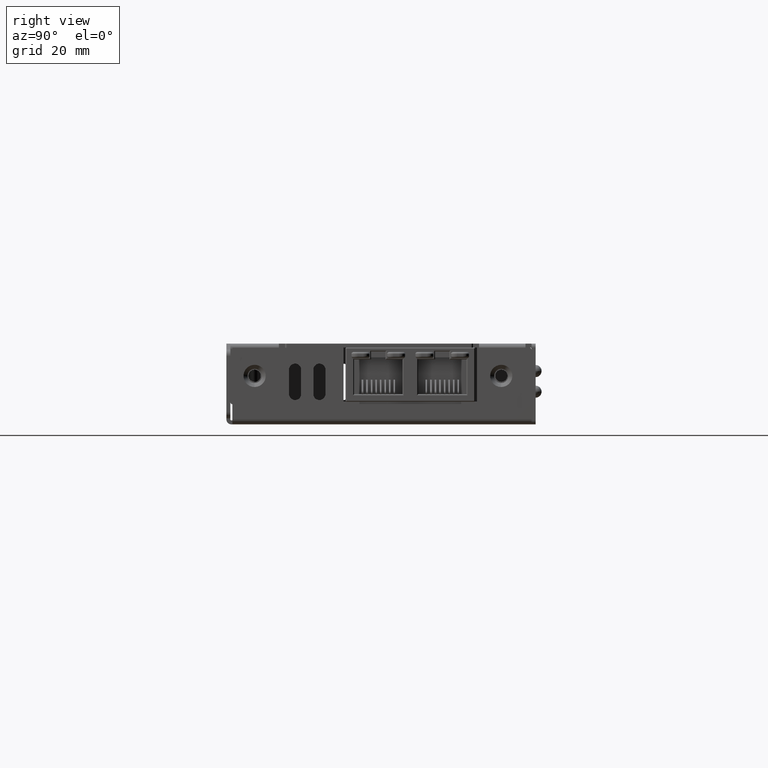
[diagram: clean part render]
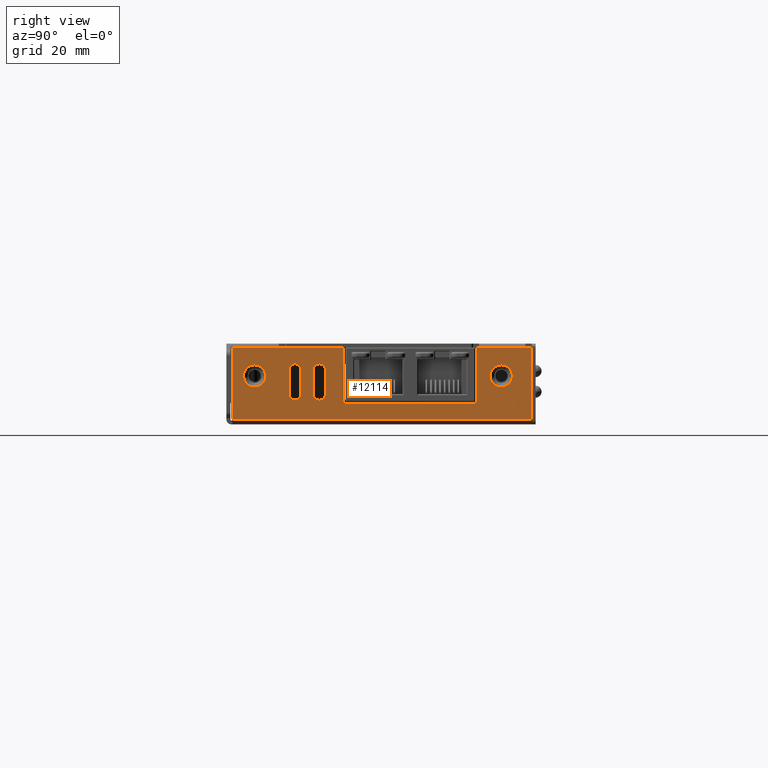
[diagram: same view with one face highlighted and labeled with its STEP entity id]
A machine part, right view. The second image highlights one B-rep face of the part: STEP entity #12114.
In plain terms, the highlighted planar face has unit normal (-1, 0, 0).
Its self-contained STEP definition (entity closure, byte-faithful):
#10593 = VERTEX_POINT ( 'NONE', #23506 ) ;
#10611 = VERTEX_POINT ( 'NONE', #23531 ) ;
#10651 = VERTEX_POINT ( 'NONE', #23627 ) ;
#10658 = EDGE_CURVE ( 'NONE', #10651, #10593, #23621, .T. ) ;
#10690 = EDGE_CURVE ( 'NONE', #10694, #10611, #23672, .T. ) ;
#10694 = VERTEX_POINT ( 'NONE', #23662 ) ;
#11846 = VERTEX_POINT ( 'NONE', #25665 ) ;
#11870 = EDGE_CURVE ( 'NONE', #11897, #11883, #25696, .T. ) ;
#11871 = VERTEX_POINT ( 'NONE', #25705 ) ;
#11883 = VERTEX_POINT ( 'NONE', #25733 ) ;
#11885 = EDGE_CURVE ( 'NONE', #11846, #11883, #25731, .T. ) ;
#11897 = VERTEX_POINT ( 'NONE', #25734 ) ;
#11919 = VERTEX_POINT ( 'NONE', #25715 ) ;
#11925 = EDGE_CURVE ( 'NONE', #11871, #11919, #25747, .T. ) ;
#11936 = EDGE_CURVE ( 'NONE', #11871, #11897, #25789, .T. ) ;
#11942 = EDGE_CURVE ( 'NONE', #11996, #11955, #25784, .T. ) ;
#11949 = EDGE_CURVE ( 'NONE', #11955, #11960, #25807, .T. ) ;
#11955 = VERTEX_POINT ( 'NONE', #25841 ) ;
#11957 = EDGE_CURVE ( 'NONE', #11966, #11960, #25834, .T. ) ;
#11959 = VERTEX_POINT ( 'NONE', #25825 ) ;
#11960 = VERTEX_POINT ( 'NONE', #25846 ) ;
#11963 = EDGE_CURVE ( 'NONE', #11968, #11919, #25869, .T. ) ;
#11964 = EDGE_CURVE ( 'NONE', #11846, #11968, #25864, .T. ) ;
#11966 = VERTEX_POINT ( 'NONE', #25819 ) ;
#11968 = VERTEX_POINT ( 'NONE', #25818 ) ;
#11984 = VERTEX_POINT ( 'NONE', #25848 ) ;
#11990 = EDGE_CURVE ( 'NONE', #11984, #11959, #25900, .T. ) ;
#11996 = VERTEX_POINT ( 'NONE', #25881 ) ;
#12006 = EDGE_CURVE ( 'NONE', #11996, #11959, #25923, .T. ) ;
#12010 = EDGE_CURVE ( 'NONE', #12049, #12107, #25917, .T. ) ;
#12015 = EDGE_CURVE ( 'NONE', #12074, #12017, #25955, .T. ) ;
#12017 = VERTEX_POINT ( 'NONE', #25966 ) ;
#12031 = EDGE_CURVE ( 'NONE', #12034, #12032, #25985, .T. ) ;
#12032 = VERTEX_POINT ( 'NONE', #25986 ) ;
#12034 = VERTEX_POINT ( 'NONE', #25943 ) ;
#12039 = EDGE_CURVE ( 'NONE', #11966, #11984, #25976, .T. ) ;
#12049 = VERTEX_POINT ( 'NONE', #26016 ) ;
#12053 = EDGE_CURVE ( 'NONE', #12067, #12049, #25993, .T. ) ;
#12062 = EDGE_CURVE ( 'NONE', #12017, #12067, #26048, .T. ) ;
#12067 = VERTEX_POINT ( 'NONE', #26021 ) ;
#12070 = EDGE_CURVE ( 'NONE', #12032, #12074, #26070, .T. ) ;
#12074 = VERTEX_POINT ( 'NONE', #26020 ) ;
#12080 = EDGE_CURVE ( 'NONE', #10611, #10694, #26062, .T. ) ;
#12084 = VERTEX_POINT ( 'NONE', #26103 ) ;
#12089 = EDGE_CURVE ( 'NONE', #10593, #10651, #26084, .T. ) ;
#12092 = VERTEX_POINT ( 'NONE', #26097 ) ;
#12107 = VERTEX_POINT ( 'NONE', #26122 ) ;
#12110 = VERTEX_POINT ( 'NONE', #26113 ) ;
#12113 = EDGE_CURVE ( 'NONE', #12092, #12107, #26119, .T. ) ;
#12114 = ADVANCED_FACE ( 'NONE', ( #26161, #26107, #26112, #26160, #26156 ), #26105, .F. ) ;
#12115 = ORIENTED_EDGE ( 'NONE', *, *, #10658, .T. ) ;
#12116 = EDGE_LOOP ( 'NONE', ( #12120, #12122 ) ) ;
#12117 = ORIENTED_EDGE ( 'NONE', *, *, #12089, .T. ) ;
#12118 = ORIENTED_EDGE ( 'NONE', *, *, #12132, .F. ) ;
#12119 = ORIENTED_EDGE ( 'NONE', *, *, #12053, .F. ) ;
#12120 = ORIENTED_EDGE ( 'NONE', *, *, #10690, .T. ) ;
#12121 = EDGE_LOOP ( 'NONE', ( #12118, #12169, #12123, #12124, #12172, #12119, #12175, #12171, #12177, #12173, #12174 ) ) ;
#12122 = ORIENTED_EDGE ( 'NONE', *, *, #12080, .T. ) ;
#12123 = ORIENTED_EDGE ( 'NONE', *, *, #12170, .F. ) ;
#12124 = ORIENTED_EDGE ( 'NONE', *, *, #12113, .T. ) ;
#12132 = EDGE_CURVE ( 'NONE', #12110, #12084, #26153, .T. ) ;
#12143 = EDGE_CURVE ( 'NONE', #12084, #12034, #24995, .T. ) ;
#12146 = ORIENTED_EDGE ( 'NONE', *, *, #11936, .T. ) ;
#12148 = ORIENTED_EDGE ( 'NONE', *, *, #11885, .F. ) ;
#12156 = EDGE_LOOP ( 'NONE', ( #12176, #12161, #12158, #12157, #12164, #12160 ) ) ;
#12157 = ORIENTED_EDGE ( 'NONE', *, *, #11942, .T. ) ;
#12158 = ORIENTED_EDGE ( 'NONE', *, *, #12006, .F. ) ;
#12160 = ORIENTED_EDGE ( 'NONE', *, *, #11957, .F. ) ;
#12161 = ORIENTED_EDGE ( 'NONE', *, *, #11990, .T. ) ;
#12162 = ORIENTED_EDGE ( 'NONE', *, *, #11870, .T. ) ;
#12163 = ORIENTED_EDGE ( 'NONE', *, *, #11964, .T. ) ;
#12164 = ORIENTED_EDGE ( 'NONE', *, *, #11949, .T. ) ;
#12165 = EDGE_LOOP ( 'NONE', ( #12163, #12180, #12166, #12146, #12162, #12148 ) ) ;
#12166 = ORIENTED_EDGE ( 'NONE', *, *, #11925, .F. ) ;
#12168 = VERTEX_POINT ( 'NONE', #26189 ) ;
#12169 = ORIENTED_EDGE ( 'NONE', *, *, #12182, .T. ) ;
#12170 = EDGE_CURVE ( 'NONE', #12092, #12168, #26182, .T. ) ;
#12171 = ORIENTED_EDGE ( 'NONE', *, *, #12015, .F. ) ;
#12172 = ORIENTED_EDGE ( 'NONE', *, *, #12010, .F. ) ;
#12173 = ORIENTED_EDGE ( 'NONE', *, *, #12031, .F. ) ;
#12174 = ORIENTED_EDGE ( 'NONE', *, *, #12143, .F. ) ;
#12175 = ORIENTED_EDGE ( 'NONE', *, *, #12062, .F. ) ;
#12176 = ORIENTED_EDGE ( 'NONE', *, *, #12039, .T. ) ;
#12177 = ORIENTED_EDGE ( 'NONE', *, *, #12070, .F. ) ;
#12180 = ORIENTED_EDGE ( 'NONE', *, *, #11963, .T. ) ;
#12181 = EDGE_LOOP ( 'NONE', ( #12115, #12117 ) ) ;
#12182 = EDGE_CURVE ( 'NONE', #12110, #12168, #26170, .T. ) ;
#23506 = CARTESIAN_POINT ( 'NONE',  ( 134.0000000000000000, 67.99999999999998600, 14.74999999999998600 ) ) ;
#23531 = CARTESIAN_POINT ( 'NONE',  ( 134.0000000000000000, 7.000000000000000900, 14.75000000000001200 ) ) ;
#23588 = AXIS2_PLACEMENT_3D ( 'NONE', #23628, #23611, #23610 ) ;
#23610 = DIRECTION ( 'NONE',  ( 0.0000000000000000000, 0.0000000000000000000, 1.000000000000000000 ) ) ;
#23611 = DIRECTION ( 'NONE',  ( -1.000000000000000000, 0.0000000000000000000, 0.0000000000000000000 ) ) ;
#23621 = CIRCLE ( 'NONE', #23588, 2.749999999999976500 ) ;
#23627 = CARTESIAN_POINT ( 'NONE',  ( 134.0000000000000000, 67.99999999999998600, 9.250000000000035500 ) ) ;
#23628 = CARTESIAN_POINT ( 'NONE',  ( 134.0000000000000000, 67.99999999999998600, 12.00000000000001100 ) ) ;
#23659 = DIRECTION ( 'NONE',  ( 0.0000000000000000000, 0.0000000000000000000, 1.000000000000000000 ) ) ;
#23660 = DIRECTION ( 'NONE',  ( -1.000000000000000000, 0.0000000000000000000, 0.0000000000000000000 ) ) ;
#23661 = CARTESIAN_POINT ( 'NONE',  ( 134.0000000000000000, 7.000000000000000900, 12.00000000000001100 ) ) ;
#23662 = CARTESIAN_POINT ( 'NONE',  ( 134.0000000000000000, 7.000000000000000900, 9.250000000000008900 ) ) ;
#23663 = AXIS2_PLACEMENT_3D ( 'NONE', #23661, #23660, #23659 ) ;
#23672 = CIRCLE ( 'NONE', #23663, 2.750000000000002700 ) ;
#24267 = VECTOR ( 'NONE', #24313, 1000.000000000000000 ) ;
#24292 = CARTESIAN_POINT ( 'NONE',  ( 134.0000000000000000, 1.500000000000000000, 0.0000000000000000000 ) ) ;
#24313 = DIRECTION ( 'NONE',  ( 0.0000000000000000000, 0.0000000000000000000, 1.000000000000000000 ) ) ;
#24985 = CARTESIAN_POINT ( 'NONE',  ( 134.0000000000000000, 75.50000000000000000, 19.00000000000001800 ) ) ;
#24990 = DIRECTION ( 'NONE',  ( 0.0000000000000000000, 1.000000000000000000, 0.0000000000000000000 ) ) ;
#24991 = VECTOR ( 'NONE', #24990, 1000.000000000000000 ) ;
#24995 = LINE ( 'NONE', #24985, #24991 ) ;
#25665 = CARTESIAN_POINT ( 'NONE',  ( 134.0000000000000000, 21.50000000000000000, 13.50000000000001200 ) ) ;
#25669 = AXIS2_PLACEMENT_3D ( 'NONE', #25695, #25694, #25693 ) ;
#25693 = DIRECTION ( 'NONE',  ( 0.0000000000000000000, 0.0000000000000000000, 1.000000000000000000 ) ) ;
#25694 = DIRECTION ( 'NONE',  ( -1.000000000000000000, 0.0000000000000000000, 0.0000000000000000000 ) ) ;
#25695 = CARTESIAN_POINT ( 'NONE',  ( 134.0000000000000000, 23.00000000000000000, 7.500000000000007100 ) ) ;
#25696 = CIRCLE ( 'NONE', #25669, 1.499999999999999600 ) ;
#25705 = CARTESIAN_POINT ( 'NONE',  ( 134.0000000000000000, 24.49999999999999600, 7.500000000000007100 ) ) ;
#25715 = CARTESIAN_POINT ( 'NONE',  ( 134.0000000000000000, 24.49999999999999600, 13.50000000000001200 ) ) ;
#25728 = DIRECTION ( 'NONE',  ( 0.0000000000000000000, 0.0000000000000000000, -1.000000000000000000 ) ) ;
#25729 = VECTOR ( 'NONE', #25728, 1000.000000000000000 ) ;
#25730 = CARTESIAN_POINT ( 'NONE',  ( 134.0000000000000000, 21.50000000000000000, 15.00000000000001400 ) ) ;
#25731 = LINE ( 'NONE', #25730, #25729 ) ;
#25733 = CARTESIAN_POINT ( 'NONE',  ( 134.0000000000000000, 21.50000000000000000, 7.500000000000007100 ) ) ;
#25734 = CARTESIAN_POINT ( 'NONE',  ( 134.0000000000000000, 22.99999999999999600, 6.000000000000005300 ) ) ;
#25740 = CARTESIAN_POINT ( 'NONE',  ( 134.0000000000000000, 16.99999999999999600, 7.500000000000007100 ) ) ;
#25743 = DIRECTION ( 'NONE',  ( 0.0000000000000000000, 0.0000000000000000000, 1.000000000000000000 ) ) ;
#25744 = VECTOR ( 'NONE', #25743, 1000.000000000000000 ) ;
#25745 = CARTESIAN_POINT ( 'NONE',  ( 134.0000000000000000, 24.49999999999999600, 15.00000000000001400 ) ) ;
#25747 = LINE ( 'NONE', #25745, #25744 ) ;
#25770 = AXIS2_PLACEMENT_3D ( 'NONE', #25817, #25816, #25815 ) ;
#25775 = DIRECTION ( 'NONE',  ( 0.0000000000000000000, 0.0000000000000000000, 1.000000000000000000 ) ) ;
#25776 = DIRECTION ( 'NONE',  ( -1.000000000000000000, 0.0000000000000000000, 0.0000000000000000000 ) ) ;
#25777 = CARTESIAN_POINT ( 'NONE',  ( 134.0000000000000000, 22.99999999999999600, 7.500000000000007100 ) ) ;
#25784 = CIRCLE ( 'NONE', #25770, 1.499999999999999600 ) ;
#25789 = CIRCLE ( 'NONE', #25790, 1.499999999999999600 ) ;
#25790 = AXIS2_PLACEMENT_3D ( 'NONE', #25777, #25776, #25775 ) ;
#25796 = AXIS2_PLACEMENT_3D ( 'NONE', #25868, #25867, #25866 ) ;
#25799 = DIRECTION ( 'NONE',  ( 0.0000000000000000000, 0.0000000000000000000, 1.000000000000000000 ) ) ;
#25800 = DIRECTION ( 'NONE',  ( -1.000000000000000000, 0.0000000000000000000, 0.0000000000000000000 ) ) ;
#25807 = CIRCLE ( 'NONE', #25814, 1.499999999999999600 ) ;
#25814 = AXIS2_PLACEMENT_3D ( 'NONE', #25740, #25800, #25799 ) ;
#25815 = DIRECTION ( 'NONE',  ( 0.0000000000000000000, 0.0000000000000000000, 1.000000000000000000 ) ) ;
#25816 = DIRECTION ( 'NONE',  ( -1.000000000000000000, 0.0000000000000000000, 0.0000000000000000000 ) ) ;
#25817 = CARTESIAN_POINT ( 'NONE',  ( 134.0000000000000000, 16.99999999999999600, 7.500000000000007100 ) ) ;
#25818 = CARTESIAN_POINT ( 'NONE',  ( 134.0000000000000000, 23.00000000000000000, 15.00000000000001400 ) ) ;
#25819 = CARTESIAN_POINT ( 'NONE',  ( 134.0000000000000000, 15.49999999999999800, 13.50000000000001200 ) ) ;
#25825 = CARTESIAN_POINT ( 'NONE',  ( 134.0000000000000000, 18.50000000000000000, 13.50000000000001200 ) ) ;
#25826 = DIRECTION ( 'NONE',  ( 0.0000000000000000000, 0.0000000000000000000, -1.000000000000000000 ) ) ;
#25827 = VECTOR ( 'NONE', #25826, 1000.000000000000000 ) ;
#25828 = CARTESIAN_POINT ( 'NONE',  ( 134.0000000000000000, 15.49999999999999800, 15.00000000000001400 ) ) ;
#25833 = CARTESIAN_POINT ( 'NONE',  ( 134.0000000000000000, 23.00000000000000000, 13.50000000000001200 ) ) ;
#25834 = LINE ( 'NONE', #25828, #25827 ) ;
#25841 = CARTESIAN_POINT ( 'NONE',  ( 134.0000000000000000, 16.99999999999999600, 6.000000000000005300 ) ) ;
#25846 = CARTESIAN_POINT ( 'NONE',  ( 134.0000000000000000, 15.49999999999999800, 7.500000000000007100 ) ) ;
#25848 = CARTESIAN_POINT ( 'NONE',  ( 134.0000000000000000, 16.99999999999999600, 15.00000000000001400 ) ) ;
#25852 = AXIS2_PLACEMENT_3D ( 'NONE', #25893, #25892, #25891 ) ;
#25862 = DIRECTION ( 'NONE',  ( 0.0000000000000000000, 0.0000000000000000000, 1.000000000000000000 ) ) ;
#25863 = DIRECTION ( 'NONE',  ( -1.000000000000000000, 0.0000000000000000000, 0.0000000000000000000 ) ) ;
#25864 = CIRCLE ( 'NONE', #25872, 1.499999999999999600 ) ;
#25866 = DIRECTION ( 'NONE',  ( 0.0000000000000000000, 0.0000000000000000000, 1.000000000000000000 ) ) ;
#25867 = DIRECTION ( 'NONE',  ( -1.000000000000000000, 0.0000000000000000000, 0.0000000000000000000 ) ) ;
#25868 = CARTESIAN_POINT ( 'NONE',  ( 134.0000000000000000, 22.99999999999999600, 13.50000000000001200 ) ) ;
#25869 = CIRCLE ( 'NONE', #25796, 1.499999999999999600 ) ;
#25872 = AXIS2_PLACEMENT_3D ( 'NONE', #25833, #25863, #25862 ) ;
#25881 = CARTESIAN_POINT ( 'NONE',  ( 134.0000000000000000, 18.50000000000000000, 7.500000000000007100 ) ) ;
#25891 = DIRECTION ( 'NONE',  ( 0.0000000000000000000, 0.0000000000000000000, 1.000000000000000000 ) ) ;
#25892 = DIRECTION ( 'NONE',  ( -1.000000000000000000, 0.0000000000000000000, 0.0000000000000000000 ) ) ;
#25893 = CARTESIAN_POINT ( 'NONE',  ( 134.0000000000000000, 16.99999999999999600, 13.50000000000001200 ) ) ;
#25900 = CIRCLE ( 'NONE', #25852, 1.499999999999999600 ) ;
#25909 = DIRECTION ( 'NONE',  ( 0.0000000000000000000, 1.000000000000000000, 0.0000000000000000000 ) ) ;
#25910 = VECTOR ( 'NONE', #25909, 1000.000000000000000 ) ;
#25911 = CARTESIAN_POINT ( 'NONE',  ( 134.0000000000000000, 75.50000000000000000, 19.00000000000001800 ) ) ;
#25917 = LINE ( 'NONE', #25911, #25910 ) ;
#25920 = DIRECTION ( 'NONE',  ( 0.0000000000000000000, 0.0000000000000000000, 1.000000000000000000 ) ) ;
#25921 = VECTOR ( 'NONE', #25920, 1000.000000000000000 ) ;
#25922 = CARTESIAN_POINT ( 'NONE',  ( 134.0000000000000000, 18.50000000000000000, 15.00000000000001400 ) ) ;
#25923 = LINE ( 'NONE', #25922, #25921 ) ;
#25943 = CARTESIAN_POINT ( 'NONE',  ( 134.0000000000000000, 28.99000000000000200, 18.99999999999998900 ) ) ;
#25952 = DIRECTION ( 'NONE',  ( 0.0000000000000000000, 1.000000000000000000, 0.0000000000000000000 ) ) ;
#25953 = VECTOR ( 'NONE', #25952, 1000.000000000000000 ) ;
#25954 = CARTESIAN_POINT ( 'NONE',  ( 134.0000000000000000, 29.78999999999999900, 5.049999999999998900 ) ) ;
#25955 = LINE ( 'NONE', #25954, #25953 ) ;
#25966 = CARTESIAN_POINT ( 'NONE',  ( 134.0000000000000000, 61.21000000000000100, 5.049999999999971400 ) ) ;
#25976 = CIRCLE ( 'NONE', #26015, 1.499999999999999600 ) ;
#25982 = DIRECTION ( 'NONE',  ( 0.0000000000000000000, 0.0000000000000000000, -1.000000000000000000 ) ) ;
#25983 = VECTOR ( 'NONE', #25982, 1000.000000000000000 ) ;
#25984 = CARTESIAN_POINT ( 'NONE',  ( 134.0000000000000000, 28.99000000000000200, 18.69999999999999600 ) ) ;
#25985 = LINE ( 'NONE', #25984, #25983 ) ;
#25986 = CARTESIAN_POINT ( 'NONE',  ( 134.0000000000000000, 28.99000000000000200, 5.849999999999965900 ) ) ;
#25992 = CARTESIAN_POINT ( 'NONE',  ( 134.0000000000000000, 61.21000000000000100, 5.849999999999994300 ) ) ;
#25993 = LINE ( 'NONE', #26047, #26046 ) ;
#26012 = DIRECTION ( 'NONE',  ( 0.0000000000000000000, 0.0000000000000000000, 1.000000000000000000 ) ) ;
#26013 = DIRECTION ( 'NONE',  ( -1.000000000000000000, 0.0000000000000000000, 0.0000000000000000000 ) ) ;
#26014 = CARTESIAN_POINT ( 'NONE',  ( 134.0000000000000000, 16.99999999999999600, 13.50000000000001200 ) ) ;
#26015 = AXIS2_PLACEMENT_3D ( 'NONE', #26014, #26013, #26012 ) ;
#26016 = CARTESIAN_POINT ( 'NONE',  ( 134.0000000000000000, 62.01000000000000500, 18.99999999999998900 ) ) ;
#26020 = CARTESIAN_POINT ( 'NONE',  ( 134.0000000000000000, 29.78999999999999900, 5.049999999999971400 ) ) ;
#26021 = CARTESIAN_POINT ( 'NONE',  ( 134.0000000000000000, 62.01000000000000500, 5.849999999999965900 ) ) ;
#26023 = DIRECTION ( 'NONE',  ( 0.0000000000000000000, 0.0000000000000000000, -1.000000000000000000 ) ) ;
#26024 = DIRECTION ( 'NONE',  ( 1.000000000000000000, 0.0000000000000000000, 0.0000000000000000000 ) ) ;
#26033 = AXIS2_PLACEMENT_3D ( 'NONE', #25992, #26024, #26023 ) ;
#26043 = AXIS2_PLACEMENT_3D ( 'NONE', #26069, #26068, #26067 ) ;
#26045 = DIRECTION ( 'NONE',  ( 0.0000000000000000000, 0.0000000000000000000, 1.000000000000000000 ) ) ;
#26046 = VECTOR ( 'NONE', #26045, 1000.000000000000000 ) ;
#26047 = CARTESIAN_POINT ( 'NONE',  ( 134.0000000000000000, 62.01000000000000500, 18.69999999999999600 ) ) ;
#26048 = CIRCLE ( 'NONE', #26033, 0.8000000000000012700 ) ;
#26050 = DIRECTION ( 'NONE',  ( 0.0000000000000000000, 0.0000000000000000000, 1.000000000000000000 ) ) ;
#26051 = DIRECTION ( 'NONE',  ( -1.000000000000000000, 0.0000000000000000000, 0.0000000000000000000 ) ) ;
#26052 = CARTESIAN_POINT ( 'NONE',  ( 134.0000000000000000, 7.000000000000000900, 12.00000000000001100 ) ) ;
#26053 = AXIS2_PLACEMENT_3D ( 'NONE', #26052, #26051, #26050 ) ;
#26062 = CIRCLE ( 'NONE', #26053, 2.750000000000002700 ) ;
#26067 = DIRECTION ( 'NONE',  ( 0.0000000000000000000, 0.0000000000000000000, -1.000000000000000000 ) ) ;
#26068 = DIRECTION ( 'NONE',  ( 1.000000000000000000, 0.0000000000000000000, 0.0000000000000000000 ) ) ;
#26069 = CARTESIAN_POINT ( 'NONE',  ( 134.0000000000000000, 29.78999999999999900, 5.849999999999994300 ) ) ;
#26070 = CIRCLE ( 'NONE', #26043, 0.7999999999999994900 ) ;
#26081 = DIRECTION ( 'NONE',  ( 0.0000000000000000000, 0.0000000000000000000, 1.000000000000000000 ) ) ;
#26082 = DIRECTION ( 'NONE',  ( -1.000000000000000000, 0.0000000000000000000, 0.0000000000000000000 ) ) ;
#26083 = CARTESIAN_POINT ( 'NONE',  ( 134.0000000000000000, 67.99999999999998600, 12.00000000000001100 ) ) ;
#26084 = CIRCLE ( 'NONE', #26101, 2.749999999999976500 ) ;
#26097 = CARTESIAN_POINT ( 'NONE',  ( 134.0000000000000000, 75.50000000000000000, 18.50000000000001800 ) ) ;
#26101 = AXIS2_PLACEMENT_3D ( 'NONE', #26083, #26082, #26081 ) ;
#26103 = CARTESIAN_POINT ( 'NONE',  ( 134.0000000000000000, 1.500000000000000000, 18.99999999999998900 ) ) ;
#26105 = PLANE ( 'NONE',  #26115 ) ;
#26107 = FACE_BOUND ( 'NONE', #12116, .T. ) ;
#26108 = AXIS2_PLACEMENT_3D ( 'NONE', #26159, #26158, #26157 ) ;
#26112 = FACE_OUTER_BOUND ( 'NONE', #12121, .T. ) ;
#26113 = CARTESIAN_POINT ( 'NONE',  ( 134.0000000000000300, 1.500000000000001300, 1.299999999999945400 ) ) ;
#26115 = AXIS2_PLACEMENT_3D ( 'NONE', #26151, #26150, #26149 ) ;
#26119 = CIRCLE ( 'NONE', #26108, 0.5000000000000004400 ) ;
#26122 = CARTESIAN_POINT ( 'NONE',  ( 134.0000000000000000, 75.00000000000000000, 18.99999999999998900 ) ) ;
#26149 = DIRECTION ( 'NONE',  ( 0.0000000000000000000, 0.0000000000000000000, 1.000000000000000000 ) ) ;
#26150 = DIRECTION ( 'NONE',  ( -1.000000000000000000, 0.0000000000000000000, 0.0000000000000000000 ) ) ;
#26151 = CARTESIAN_POINT ( 'NONE',  ( 134.0000000000000000, 0.0000000000000000000, 20.00000000000001800 ) ) ;
#26153 = LINE ( 'NONE', #24292, #24267 ) ;
#26156 = FACE_BOUND ( 'NONE', #12165, .T. ) ;
#26157 = DIRECTION ( 'NONE',  ( 0.0000000000000000000, 0.0000000000000000000, 1.000000000000000000 ) ) ;
#26158 = DIRECTION ( 'NONE',  ( 1.000000000000000000, -0.0000000000000000000, -0.0000000000000000000 ) ) ;
#26159 = CARTESIAN_POINT ( 'NONE',  ( 134.0000000000000000, 75.00000000000000000, 18.50000000000001800 ) ) ;
#26160 = FACE_BOUND ( 'NONE', #12156, .T. ) ;
#26161 = FACE_BOUND ( 'NONE', #12181, .T. ) ;
#26167 = DIRECTION ( 'NONE',  ( 0.0000000000000000000, 1.000000000000000000, 0.0000000000000000000 ) ) ;
#26168 = VECTOR ( 'NONE', #26167, 1000.000000000000000 ) ;
#26169 = CARTESIAN_POINT ( 'NONE',  ( 134.0000000000000000, 1.500000000000000700, 1.299999999999967800 ) ) ;
#26170 = LINE ( 'NONE', #26169, #26168 ) ;
#26179 = DIRECTION ( 'NONE',  ( 0.0000000000000000000, -0.0000000000000000000, -1.000000000000000000 ) ) ;
#26180 = VECTOR ( 'NONE', #26179, 1000.000000000000000 ) ;
#26181 = CARTESIAN_POINT ( 'NONE',  ( 134.0000000000000000, 75.50000000000000000, 20.00000000000001800 ) ) ;
#26182 = LINE ( 'NONE', #26181, #26180 ) ;
#26189 = CARTESIAN_POINT ( 'NONE',  ( 134.0000000000000000, 75.50000000000000000, 1.299999999999995600 ) ) ;